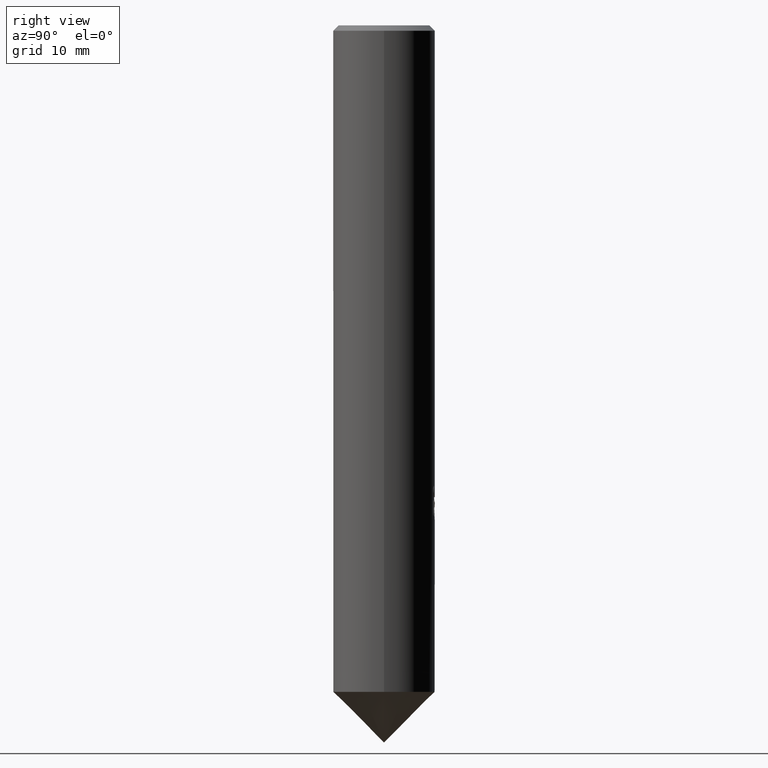
[diagram: clean part render]
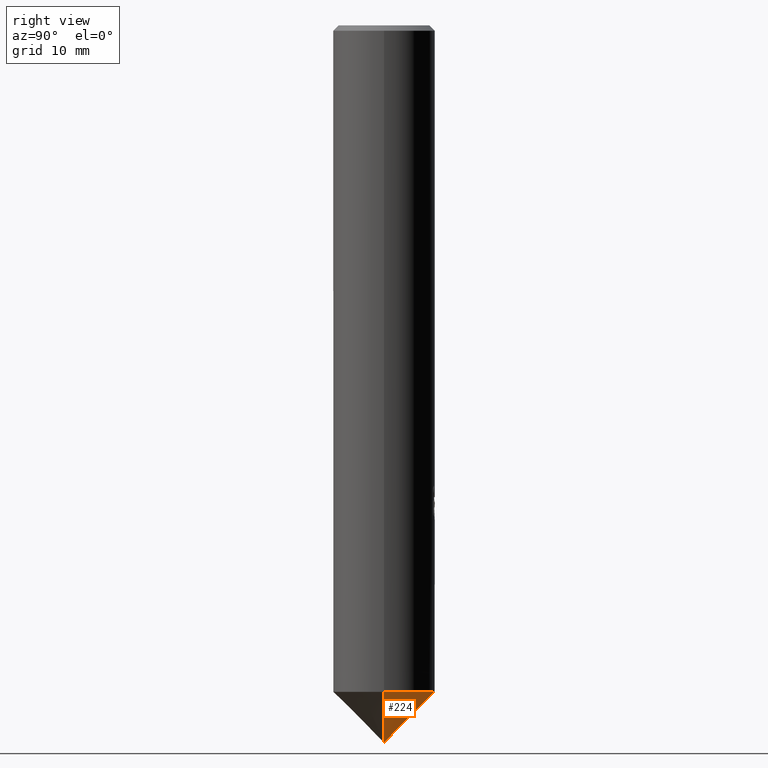
[diagram: same view with one face highlighted and labeled with its STEP entity id]
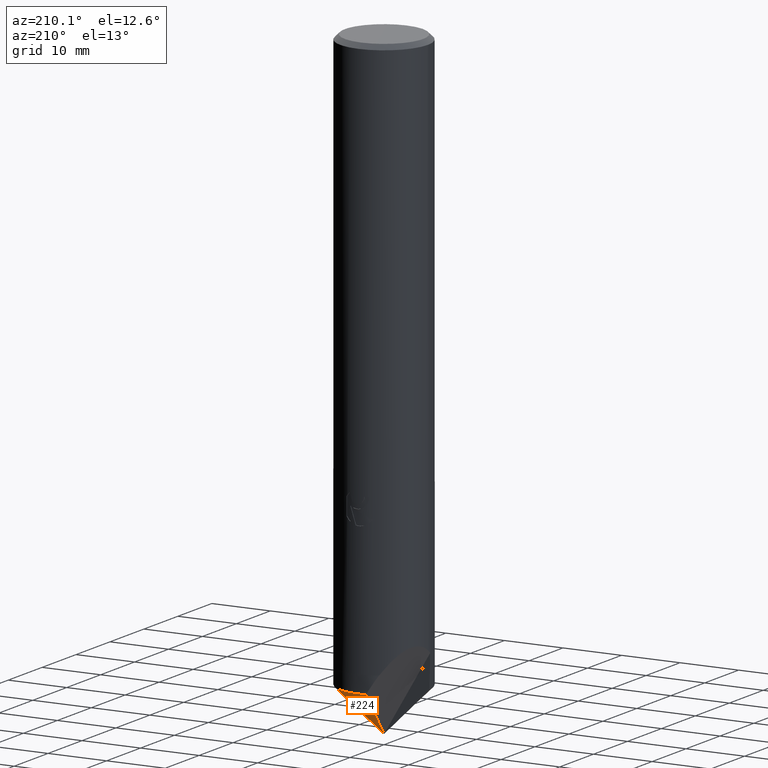
[diagram: same view with one face highlighted and labeled with its STEP entity id]
A machine part, right view. The second image highlights one B-rep face of the part: STEP entity #224.
A second angle (auxiliary view) of the same face is appended — the face is thin or edge-on in the first view.
In plain terms, the highlighted conical surface has half-angle 45 deg.
Its self-contained STEP definition (entity closure, byte-faithful):
#180=EDGE_CURVE('',#340,#216,#489,.T.);
#216=VERTEX_POINT('',#530);
#224=ADVANCED_FACE('',(#539),#540,.T.);
#262=EDGE_CURVE('',#216,#366,#581,.T.);
#302=EDGE_CURVE('',#440,#366,#626,.T.);
#340=VERTEX_POINT('',#666);
#366=VERTEX_POINT('',#696);
#418=EDGE_CURVE('',#340,#440,#750,.T.);
#440=VERTEX_POINT('',#775);
#489=LINE('',#819,#820);
#530=CARTESIAN_POINT('',(0.0,0.0,-106.0));
#539=FACE_OUTER_BOUND('',#909,.T.);
#540=CONICAL_SURFACE('',#910,3.75,0.785398163397448);
#581=LINE('',#1048,#1049);
#626=CIRCLE('',#1157,7.5);
#666=CARTESIAN_POINT('',(-0.0124291816613474,-9.95224077111807E-019,-105.987570818339));
#696=CARTESIAN_POINT('',(7.5,9.18454765366783E-016,-98.5));
#750=(B_SPLINE_CURVE(2,(#1431,#1432,#1433,#1434,#1435,#1436,#1437,#1438,#1439,#1440,#1441,#1442,#1443,#1444,#1445,#1446),.UNSPECIFIED.,.F.,.F.)B_SPLINE_CURVE_WITH_KNOTS((3,1,1,1,1,1,1,1,1,1,1,1,1,1,3),(0.0,0.0144223708020224,0.0383650552041674,0.109236686767453,0.321472929484965,0.95839546790713,2.87554785252626,8.65899897439672,15.3497662064552,18.9677353128931,20.4189957532086,20.9354876959978,21.1115659184421,21.1707155336842,21.1904873287278),.UNSPECIFIED.)RATIONAL_B_SPLINE_CURVE((1.0,1.72808043828925,3.66221623820881,8.43136863833823,22.5760721306656,64.1432492235218,181.416889877826,464.658273462127,579.739726934194,346.208963212438,143.9869464338,51.8827118173493,17.761352510332,5.9748661225281,1.99813389897675,1.0))BOUNDED_CURVE()REPRESENTATION_ITEM('')GEOMETRIC_REPRESENTATION_ITEM()CURVE());
#775=CARTESIAN_POINT('',(-1.20684191681012,7.40226536864426,-98.5));
#819=CARTESIAN_POINT('',(-3.75,-4.59227382683391E-016,-102.25));
#820=VECTOR('',#1581,1.0);
#909=EDGE_LOOP('',(#1646,#1647,#1648,#1649));
#910=AXIS2_PLACEMENT_3D('',#1650,#1651,#1652);
#1048=CARTESIAN_POINT('',(3.75,4.59227382683391E-016,-102.25));
#1049=VECTOR('',#1685,1.0);
#1157=AXIS2_PLACEMENT_3D('',#1743,#1744,#1745);
#1431=CARTESIAN_POINT('',(-5.97252677901018,-4.53639988030226,-98.5));
#1432=CARTESIAN_POINT('',(-3.45655358293089,-2.62222744267013,-101.661355854108));
#1433=CARTESIAN_POINT('',(-1.63152358025443,-1.23372729024417,-103.95452981264));
#1434=CARTESIAN_POINT('',(-0.709182676771671,-0.531996583134438,-105.113459570446));
#1435=CARTESIAN_POINT('',(-0.265421830619617,-0.194360204232095,-105.671037226243));
#1436=CARTESIAN_POINT('',(-0.0939751358279068,-0.0638620682360433,-105.886419108375));
#1437=CARTESIAN_POINT('',(-0.0336834823328344,-0.0177993924934998,-105.962037896027));
#1438=CARTESIAN_POINT('',(-0.013211137470294,-0.00151306677845839,-105.987249663392));
#1439=CARTESIAN_POINT('',(-0.00879553547156075,0.00509863467726246,-105.990455169273));
#1440=CARTESIAN_POINT('',(-0.00925151241752999,0.0160760079546242,-105.981724838343));
#1441=CARTESIAN_POINT('',(-0.0138538213766586,0.0468022473041019,-105.951286216583));
#1442=CARTESIAN_POINT('',(-0.0285806534386828,0.138335126466384,-105.858775555558));
#1443=CARTESIAN_POINT('',(-0.0730397793675497,0.412655210484618,-105.580941423444));
#1444=CARTESIAN_POINT('',(-0.206471436636044,1.23529638144952,-104.747570925028));
#1445=CARTESIAN_POINT('',(-0.606673594218677,3.70243107379331,-102.248195141246));
#1446=CARTESIAN_POINT('',(-1.20684191681012,7.40226536864425,-98.5));
#1581=DIRECTION('',(0.707106781186548,8.65927457071936E-017,-0.707106781186548));
#1646=ORIENTED_EDGE('',*,*,#262,.F.);
#1647=ORIENTED_EDGE('',*,*,#180,.F.);
#1648=ORIENTED_EDGE('',*,*,#418,.T.);
#1649=ORIENTED_EDGE('',*,*,#302,.T.);
#1650=CARTESIAN_POINT('',(0.0,0.0,-102.25));
#1651=DIRECTION('',(-0.0,-0.0,1.0));
#1652=DIRECTION('',(-1.0,0.0,0.0));
#1685=DIRECTION('',(0.707106781186548,8.65927457071936E-017,0.707106781186548));
#1743=CARTESIAN_POINT('',(0.0,0.0,-98.5));
#1744=DIRECTION('',(0.0,0.0,-1.0));
#1745=DIRECTION('',(-1.0,0.0,0.0));